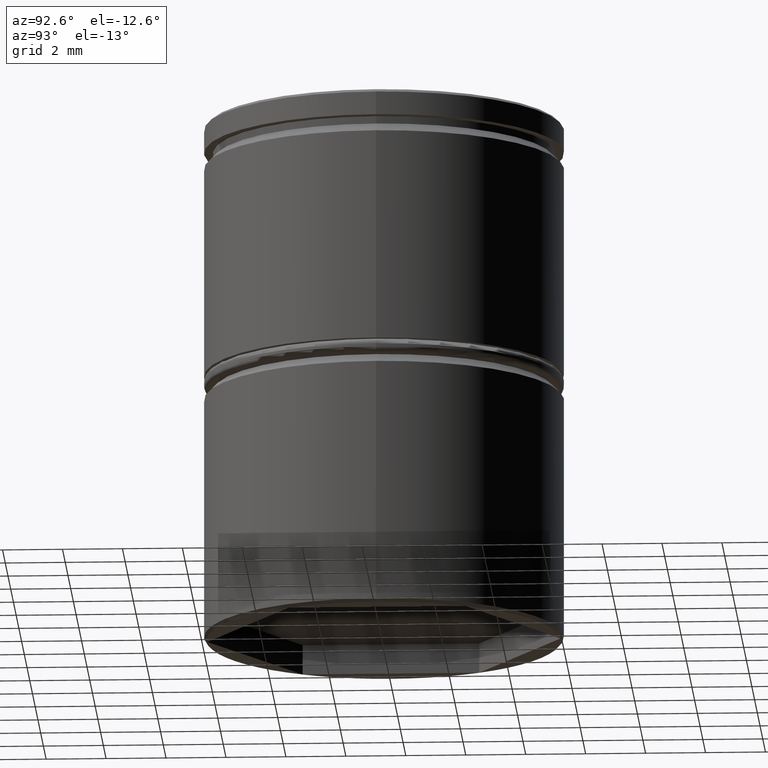
[diagram: clean part render]
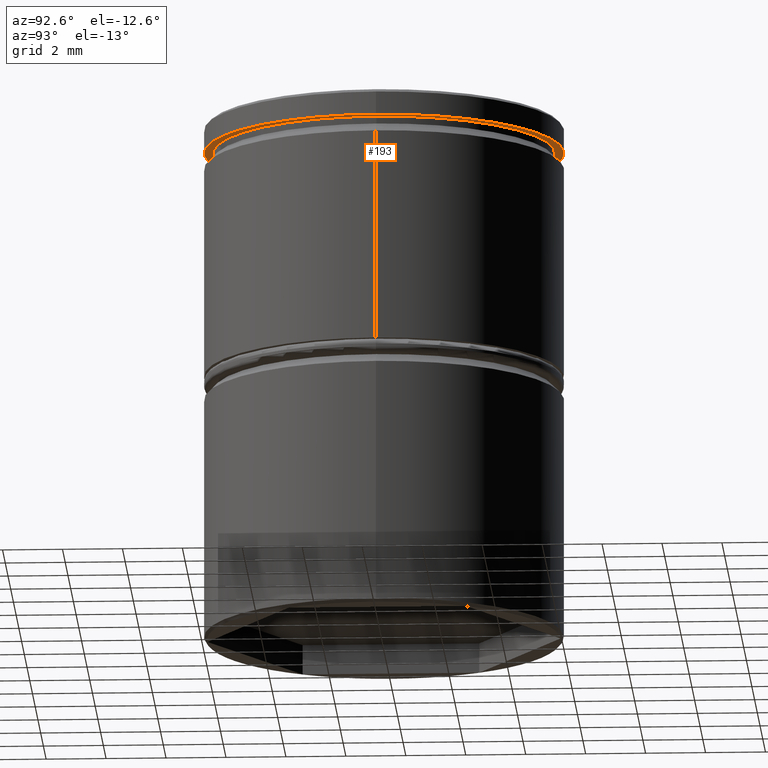
[diagram: same view with one face highlighted and labeled with its STEP entity id]
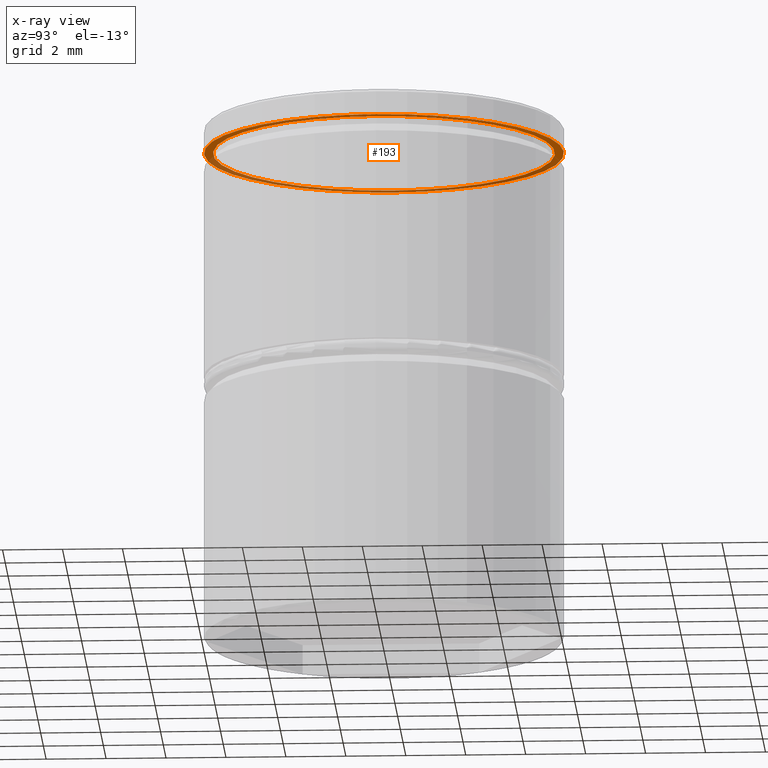
[diagram: x-ray of the same camera — body ghosted, the highlighted face saturated]
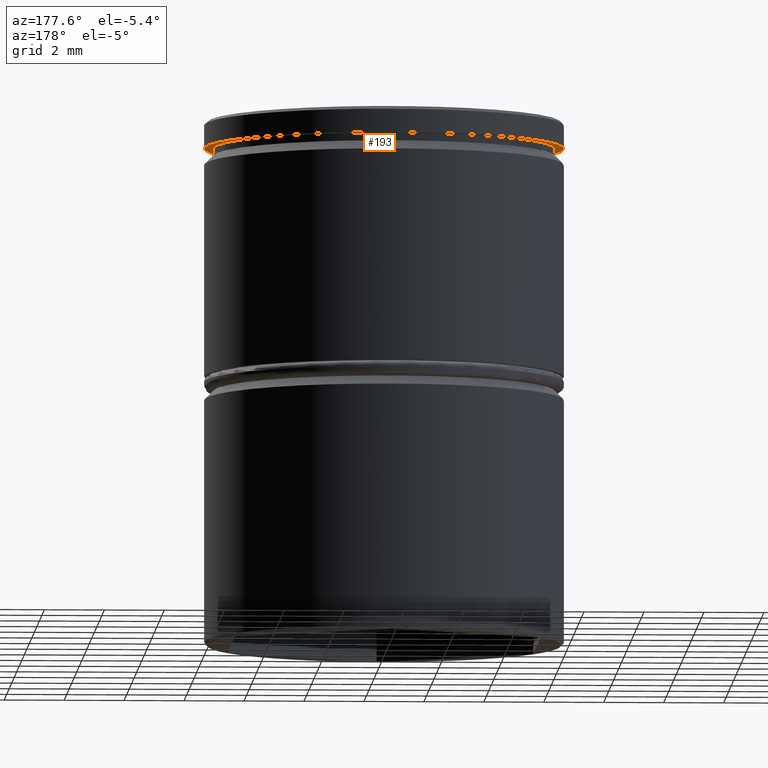
[diagram: same view with one face highlighted and labeled with its STEP entity id]
A machine part, auxiliary view. The second image highlights one B-rep face of the part: STEP entity #193.
The next image is the same camera in x-ray: the body ghosted, the highlighted face saturated — about 45% of this face is hidden behind the body in this view.
A second angle (auxiliary view) of the same face is appended — the face is thin or edge-on in the first view.
In plain terms, the highlighted planar face has unit normal (0, 0, -1).
Its self-contained STEP definition (entity closure, byte-faithful):
#29 = DIRECTION ( 'NONE',  ( 1.000000000000000000, 0.000000000000000000, 0.000000000000000000 ) ) ;
#38 = EDGE_LOOP ( 'NONE', ( #448, #633 ) ) ;
#45 = CARTESIAN_POINT ( 'NONE',  ( 0.000000000000000000, 0.000000000000000000, -0.8749999999999998890 ) ) ;
#68 = ORIENTED_EDGE ( 'NONE', *, *, #515, .F. ) ;
#94 = CIRCLE ( 'NONE', #605, 6.000000000000000000 ) ;
#99 = DIRECTION ( 'NONE',  ( -0.000000000000000000, -0.000000000000000000, 1.000000000000000000 ) ) ;
#193 = ADVANCED_FACE ( 'NONE', ( #965, #571 ), #794, .T. ) ;
#196 = AXIS2_PLACEMENT_3D ( 'NONE', #813, #99, #415 ) ;
#213 = CIRCLE ( 'NONE', #196, 5.700000000000000178 ) ;
#240 = CARTESIAN_POINT ( 'NONE',  ( 0.000000000000000000, 0.000000000000000000, -0.8749999999999998890 ) ) ;
#251 = DIRECTION ( 'NONE',  ( -1.000000000000000000, 0.000000000000000000, -0.000000000000000000 ) ) ;
#311 = CARTESIAN_POINT ( 'NONE',  ( 6.000000000000000000, 0.000000000000000000, -0.8749999999999998890 ) ) ;
#336 = CARTESIAN_POINT ( 'NONE',  ( 0.000000000000000000, 6.000000000000000000, -0.8749999999999998890 ) ) ;
#415 = DIRECTION ( 'NONE',  ( 1.000000000000000000, 0.000000000000000000, 0.000000000000000000 ) ) ;
#424 = VERTEX_POINT ( 'NONE', #997 ) ;
#448 = ORIENTED_EDGE ( 'NONE', *, *, #887, .T. ) ;
#451 = EDGE_CURVE ( 'NONE', #536, #507, #804, .T. ) ;
#464 = DIRECTION ( 'NONE',  ( -0.000000000000000000, -0.000000000000000000, 1.000000000000000000 ) ) ;
#485 = EDGE_LOOP ( 'NONE', ( #827, #68 ) ) ;
#507 = VERTEX_POINT ( 'NONE', #922 ) ;
#508 = DIRECTION ( 'NONE',  ( 1.000000000000000000, 0.000000000000000000, 0.000000000000000000 ) ) ;
#512 = VERTEX_POINT ( 'NONE', #524 ) ;
#515 = EDGE_CURVE ( 'NONE', #507, #536, #94, .T. ) ;
#524 = CARTESIAN_POINT ( 'NONE',  ( -5.700000000000000178, 6.980486755139913108E-16, -0.8749999999999998890 ) ) ;
#529 = CIRCLE ( 'NONE', #759, 5.700000000000000178 ) ;
#536 = VERTEX_POINT ( 'NONE', #311 ) ;
#571 = FACE_OUTER_BOUND ( 'NONE', #485, .T. ) ;
#605 = AXIS2_PLACEMENT_3D ( 'NONE', #240, #464, #700 ) ;
#608 = CARTESIAN_POINT ( 'NONE',  ( 0.000000000000000000, 0.000000000000000000, -0.8749999999999998890 ) ) ;
#633 = ORIENTED_EDGE ( 'NONE', *, *, #770, .T. ) ;
#666 = DIRECTION ( 'NONE',  ( -0.000000000000000000, -0.000000000000000000, 1.000000000000000000 ) ) ;
#700 = DIRECTION ( 'NONE',  ( 1.000000000000000000, 0.000000000000000000, 0.000000000000000000 ) ) ;
#731 = DIRECTION ( 'NONE',  ( 0.000000000000000000, 0.000000000000000000, -1.000000000000000000 ) ) ;
#758 = DIRECTION ( 'NONE',  ( -0.000000000000000000, -0.000000000000000000, 1.000000000000000000 ) ) ;
#759 = AXIS2_PLACEMENT_3D ( 'NONE', #45, #758, #508 ) ;
#770 = EDGE_CURVE ( 'NONE', #512, #424, #213, .T. ) ;
#794 = PLANE ( 'NONE',  #960 ) ;
#804 = CIRCLE ( 'NONE', #941, 6.000000000000000000 ) ;
#813 = CARTESIAN_POINT ( 'NONE',  ( 0.000000000000000000, 0.000000000000000000, -0.8749999999999998890 ) ) ;
#827 = ORIENTED_EDGE ( 'NONE', *, *, #451, .F. ) ;
#887 = EDGE_CURVE ( 'NONE', #424, #512, #529, .T. ) ;
#922 = CARTESIAN_POINT ( 'NONE',  ( -6.000000000000000000, 7.347880794884119736E-16, -0.8749999999999998890 ) ) ;
#941 = AXIS2_PLACEMENT_3D ( 'NONE', #608, #666, #29 ) ;
#960 = AXIS2_PLACEMENT_3D ( 'NONE', #336, #731, #251 ) ;
#965 = FACE_BOUND ( 'NONE', #38, .T. ) ;
#997 = CARTESIAN_POINT ( 'NONE',  ( 5.700000000000000178, 0.000000000000000000, -0.8749999999999998890 ) ) ;